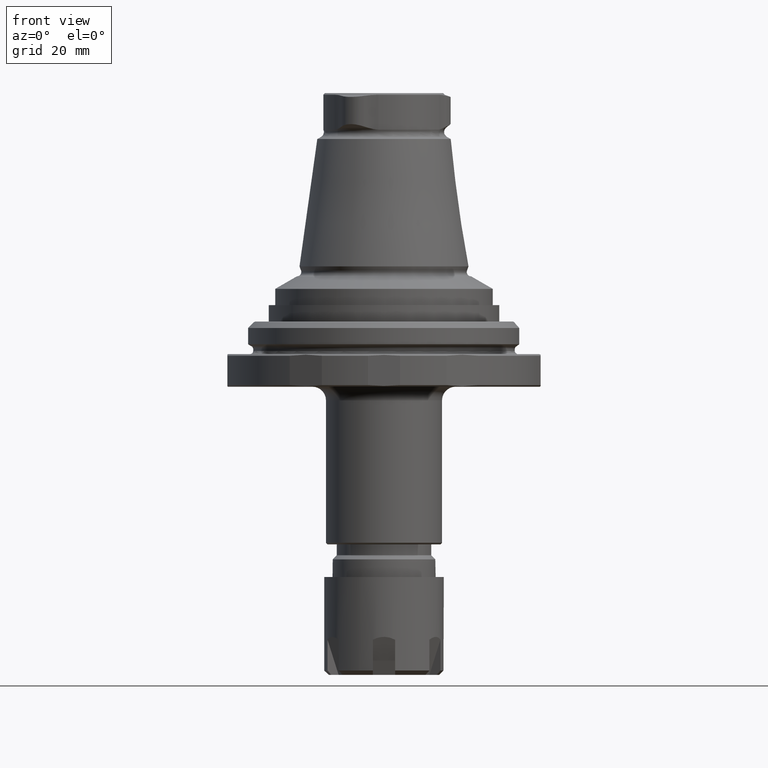
[diagram: clean part render]
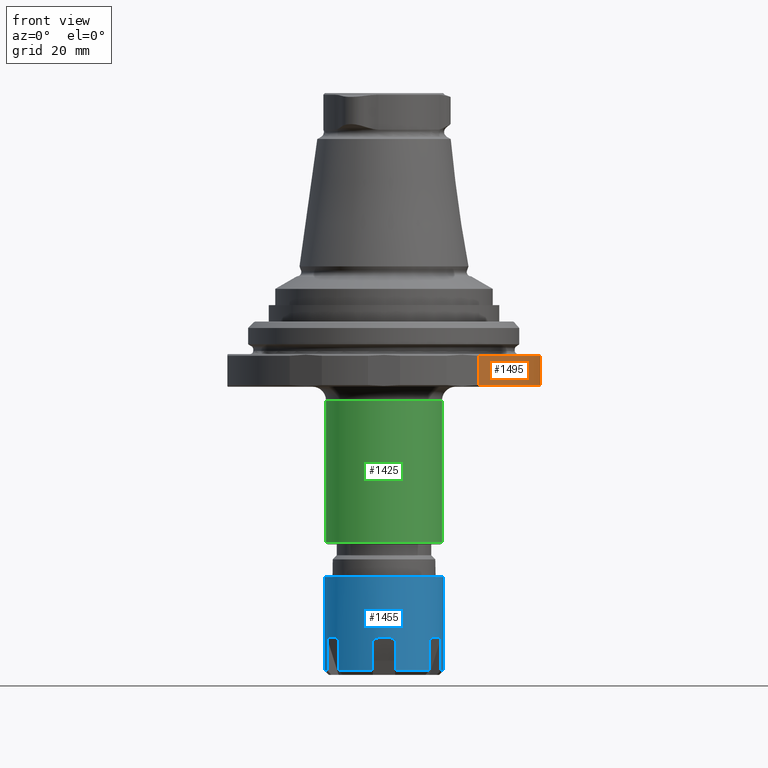
[diagram: same view with three faces highlighted in distinct colors, each labeled with its STEP entity id]
A machine part, front view with three faces highlighted in distinct colors.
Their STEP definitions:

[orange] entity #1495 — the highlighted cylindrical surface (partial cylindrical patch) has radius 29 mm, axis along (0, 0, -1).
#140=LINE('',#2698,#210);
#141=LINE('',#2699,#211);
#210=VECTOR('',#2063,1000.);
#211=VECTOR('',#2064,1000.);
#246=CYLINDRICAL_SURFACE('',#1675,29.);
#619=ORIENTED_EDGE('',*,*,#857,.F.);
#620=ORIENTED_EDGE('',*,*,#871,.T.);
#621=ORIENTED_EDGE('',*,*,#844,.T.);
#622=ORIENTED_EDGE('',*,*,#872,.T.);
#844=EDGE_CURVE('',#1006,#1005,#1090,.T.);
#857=EDGE_CURVE('',#1016,#1017,#1096,.T.);
#871=EDGE_CURVE('',#1016,#1006,#140,.F.);
#872=EDGE_CURVE('',#1005,#1017,#141,.T.);
#1005=VERTEX_POINT('',#2613);
#1006=VERTEX_POINT('',#2615);
#1016=VERTEX_POINT('',#2654);
#1017=VERTEX_POINT('',#2656);
#1090=CIRCLE('',#1657,29.);
#1096=CIRCLE('',#1665,29.);
#1211=EDGE_LOOP('',(#619,#620,#621,#622));
#1347=FACE_BOUND('',#1211,.T.);
#1495=ADVANCED_FACE('',(#1347),#246,.T.);
#1657=AXIS2_PLACEMENT_3D('',#2614,#2019,#2020);
#1665=AXIS2_PLACEMENT_3D('',#2655,#2037,#2038);
#1675=AXIS2_PLACEMENT_3D('',#2697,#2061,#2062);
#2019=DIRECTION('',(1.22464605849178E-16,1.04225259501902E-17,-1.));
#2020=DIRECTION('',(-1.,-1.84889274661175E-32,-1.22464605849178E-16));
#2037=DIRECTION('',(1.22464605849178E-16,1.04225259501902E-17,-1.));
#2038=DIRECTION('',(-1.,-1.84889274661175E-32,-1.22464605849178E-16));
#2061=DIRECTION('',(1.22464605849178E-16,1.04225259501902E-17,-1.));
#2062=DIRECTION('',(-1.,-1.84889274661175E-32,-1.22464605849178E-16));
#2063=DIRECTION('',(1.22464605849178E-16,1.04225259501902E-17,-1.));
#2064=DIRECTION('',(1.22464605849178E-16,1.04225259501902E-17,-1.));
#2613=CARTESIAN_POINT('',(17.3444863728671,-23.2415316289918,-1.30000000000001));
#2614=CARTESIAN_POINT('',(5.18882886749478E-15,9.69294913367689E-17,-1.30000000000001));
#2615=CARTESIAN_POINT('',(28.8,-3.39999999999998,-1.30000000000001));
#2654=CARTESIAN_POINT('',(28.8,-3.39999999999998,-6.70000000000001));
#2655=CARTESIAN_POINT('',(5.85013773908035E-15,1.53211131467796E-16,-6.70000000000001));
#2656=CARTESIAN_POINT('',(17.3444863728671,-23.2415316289918,-6.70000000000001));
#2697=CARTESIAN_POINT('',(5.15208948574003E-15,9.38027335517118E-17,-1.00000000000001));
#2698=CARTESIAN_POINT('',(28.8,-3.39999999999998,-1.00000000000001));
#2699=CARTESIAN_POINT('',(17.3444863728671,-23.2415316289918,-1.00000000000001));

[blue] entity #1455 — the highlighted cylindrical surface (bore or boss wall) has radius 11 mm, axis along (0, 0, -1).
#20=ELLIPSE('',#1560,32.161848401794,11.);
#21=ELLIPSE('',#1566,32.161848401794,11.);
#22=ELLIPSE('',#1572,32.161848401794,11.);
#23=ELLIPSE('',#1578,32.161848401794,11.);
#24=ELLIPSE('',#1584,32.161848401794,11.);
#25=ELLIPSE('',#1590,32.161848401794,11.);
#96=LINE('',#2224,#166);
#99=LINE('',#2237,#169);
#100=LINE('',#2251,#170);
#103=LINE('',#2259,#173);
#104=LINE('',#2273,#174);
#107=LINE('',#2281,#177);
#108=LINE('',#2295,#178);
#111=LINE('',#2303,#181);
#112=LINE('',#2317,#182);
#115=LINE('',#2325,#185);
#116=LINE('',#2339,#186);
#119=LINE('',#2347,#189);
#166=VECTOR('',#1785,1000.);
#169=VECTOR('',#1794,1000.);
#170=VECTOR('',#1801,1000.);
#173=VECTOR('',#1810,1000.);
#174=VECTOR('',#1817,1000.);
#177=VECTOR('',#1826,1000.);
#178=VECTOR('',#1833,1000.);
#181=VECTOR('',#1842,1000.);
#182=VECTOR('',#1849,1000.);
#185=VECTOR('',#1858,1000.);
#186=VECTOR('',#1865,1000.);
#189=VECTOR('',#1874,1000.);
#227=CYLINDRICAL_SURFACE('',#1594,11.);
#417=ORIENTED_EDGE('',*,*,#770,.T.);
#418=ORIENTED_EDGE('',*,*,#769,.F.);
#419=ORIENTED_EDGE('',*,*,#767,.T.);
#420=ORIENTED_EDGE('',*,*,#765,.T.);
#421=ORIENTED_EDGE('',*,*,#763,.F.);
#422=ORIENTED_EDGE('',*,*,#761,.F.);
#423=ORIENTED_EDGE('',*,*,#759,.T.);
#424=ORIENTED_EDGE('',*,*,#757,.T.);
#425=ORIENTED_EDGE('',*,*,#755,.F.);
#426=ORIENTED_EDGE('',*,*,#753,.F.);
#427=ORIENTED_EDGE('',*,*,#751,.T.);
#428=ORIENTED_EDGE('',*,*,#749,.T.);
#429=ORIENTED_EDGE('',*,*,#747,.F.);
#430=ORIENTED_EDGE('',*,*,#745,.F.);
#431=ORIENTED_EDGE('',*,*,#743,.T.);
#432=ORIENTED_EDGE('',*,*,#741,.T.);
#433=ORIENTED_EDGE('',*,*,#739,.F.);
#434=ORIENTED_EDGE('',*,*,#737,.F.);
#435=ORIENTED_EDGE('',*,*,#735,.T.);
#436=ORIENTED_EDGE('',*,*,#733,.T.);
#437=ORIENTED_EDGE('',*,*,#731,.F.);
#438=ORIENTED_EDGE('',*,*,#729,.F.);
#439=ORIENTED_EDGE('',*,*,#727,.T.);
#440=ORIENTED_EDGE('',*,*,#725,.T.);
#441=ORIENTED_EDGE('',*,*,#722,.F.);
#722=EDGE_CURVE('',#926,#927,#96,.F.);
#725=EDGE_CURVE('',#928,#927,#20,.F.);
#727=EDGE_CURVE('',#929,#928,#99,.F.);
#729=EDGE_CURVE('',#929,#930,#1054,.T.);
#731=EDGE_CURVE('',#930,#931,#100,.F.);
#733=EDGE_CURVE('',#932,#931,#21,.F.);
#735=EDGE_CURVE('',#933,#932,#103,.F.);
#737=EDGE_CURVE('',#933,#934,#1055,.T.);
#739=EDGE_CURVE('',#934,#935,#104,.F.);
#741=EDGE_CURVE('',#936,#935,#22,.F.);
#743=EDGE_CURVE('',#937,#936,#107,.F.);
#745=EDGE_CURVE('',#937,#938,#1056,.T.);
#747=EDGE_CURVE('',#938,#939,#108,.F.);
#749=EDGE_CURVE('',#940,#939,#23,.F.);
#751=EDGE_CURVE('',#941,#940,#111,.F.);
#753=EDGE_CURVE('',#941,#942,#1057,.T.);
#755=EDGE_CURVE('',#942,#943,#112,.F.);
#757=EDGE_CURVE('',#944,#943,#24,.F.);
#759=EDGE_CURVE('',#945,#944,#115,.F.);
#761=EDGE_CURVE('',#945,#946,#1058,.T.);
#763=EDGE_CURVE('',#946,#947,#116,.F.);
#765=EDGE_CURVE('',#948,#947,#25,.F.);
#767=EDGE_CURVE('',#949,#948,#119,.F.);
#769=EDGE_CURVE('',#949,#926,#1059,.T.);
#770=EDGE_CURVE('',#950,#950,#1060,.T.);
#926=VERTEX_POINT('',#2225);
#927=VERTEX_POINT('',#2226);
#928=VERTEX_POINT('',#2234);
#929=VERTEX_POINT('',#2238);
#930=VERTEX_POINT('',#2245);
#931=VERTEX_POINT('',#2252);
#932=VERTEX_POINT('',#2256);
#933=VERTEX_POINT('',#2260);
#934=VERTEX_POINT('',#2267);
#935=VERTEX_POINT('',#2274);
#936=VERTEX_POINT('',#2278);
#937=VERTEX_POINT('',#2282);
#938=VERTEX_POINT('',#2289);
#939=VERTEX_POINT('',#2296);
#940=VERTEX_POINT('',#2300);
#941=VERTEX_POINT('',#2304);
#942=VERTEX_POINT('',#2311);
#943=VERTEX_POINT('',#2318);
#944=VERTEX_POINT('',#2322);
#945=VERTEX_POINT('',#2326);
#946=VERTEX_POINT('',#2333);
#947=VERTEX_POINT('',#2340);
#948=VERTEX_POINT('',#2344);
#949=VERTEX_POINT('',#2348);
#950=VERTEX_POINT('',#2357);
#1054=CIRCLE('',#1563,11.);
#1055=CIRCLE('',#1569,11.);
#1056=CIRCLE('',#1575,11.);
#1057=CIRCLE('',#1581,11.);
#1058=CIRCLE('',#1587,11.);
#1059=CIRCLE('',#1593,11.);
#1060=CIRCLE('',#1595,11.);
#1156=EDGE_LOOP('',(#417));
#1157=EDGE_LOOP('',(#418,#419,#420,#421,#422,#423,#424,#425,#426,#427,#428,
#429,#430,#431,#432,#433,#434,#435,#436,#437,#438,#439,#440,#441));
#1292=FACE_BOUND('',#1156,.T.);
#1293=FACE_BOUND('',#1157,.T.);
#1455=ADVANCED_FACE('',(#1292,#1293),#227,.T.);
#1560=AXIS2_PLACEMENT_3D('',#2233,#1789,#1790);
#1563=AXIS2_PLACEMENT_3D('',#2244,#1797,#1798);
#1566=AXIS2_PLACEMENT_3D('',#2255,#1805,#1806);
#1569=AXIS2_PLACEMENT_3D('',#2266,#1813,#1814);
#1572=AXIS2_PLACEMENT_3D('',#2277,#1821,#1822);
#1575=AXIS2_PLACEMENT_3D('',#2288,#1829,#1830);
#1578=AXIS2_PLACEMENT_3D('',#2299,#1837,#1838);
#1581=AXIS2_PLACEMENT_3D('',#2310,#1845,#1846);
#1584=AXIS2_PLACEMENT_3D('',#2321,#1853,#1854);
#1587=AXIS2_PLACEMENT_3D('',#2332,#1861,#1862);
#1590=AXIS2_PLACEMENT_3D('',#2343,#1869,#1870);
#1593=AXIS2_PLACEMENT_3D('',#2354,#1877,#1878);
#1594=AXIS2_PLACEMENT_3D('',#2355,#1879,#1880);
#1595=AXIS2_PLACEMENT_3D('',#2356,#1881,#1882);
#1785=DIRECTION('',(1.18855327063835E-16,7.61584351035E-18,-1.));
#1789=DIRECTION('',(0.813797681349374,0.469846310392953,-0.342020143325668));
#1790=DIRECTION('',(-0.296198132726024,-0.171010071662834,-0.939692620785909));
#1794=DIRECTION('',(1.18855327063835E-16,7.61584351035E-18,-1.));
#1797=DIRECTION('',(1.18855327063835E-16,7.61584351035E-18,-1.));
#1798=DIRECTION('',(-1.,6.12303176911188E-17,-1.18855327063835E-16));
#1801=DIRECTION('',(1.18855327063835E-16,7.61584351035E-18,-1.));
#1805=DIRECTION('',(0.813797681349373,-0.469846310392955,-0.342020143325668));
#1806=DIRECTION('',(-0.296198132726023,0.171010071662835,-0.939692620785909));
#1810=DIRECTION('',(1.18855327063835E-16,7.61584351035E-18,-1.));
#1813=DIRECTION('',(1.18855327063835E-16,7.61584351035E-18,-1.));
#1814=DIRECTION('',(-1.,6.12303176911188E-17,-1.18855327063835E-16));
#1817=DIRECTION('',(1.18855327063835E-16,7.61584351035E-18,-1.));
#1821=DIRECTION('',(-1.31965917728114E-16,-0.939692620785908,-0.342020143325668));
#1822=DIRECTION('',(1.74514863192344E-16,0.342020143325669,-0.939692620785909));
#1826=DIRECTION('',(1.18855327063835E-16,7.61584351035E-18,-1.));
#1829=DIRECTION('',(1.18855327063835E-16,7.61584351035E-18,-1.));
#1830=DIRECTION('',(-1.,6.12303176911188E-17,-1.18855327063835E-16));
#1833=DIRECTION('',(1.18855327063835E-16,7.61584351035E-18,-1.));
#1837=DIRECTION('',(-0.813797681349374,-0.469846310392954,-0.342020143325669));
#1838=DIRECTION('',(0.296198132726024,0.171010071662834,-0.939692620785909));
#1842=DIRECTION('',(1.18855327063835E-16,7.61584351035E-18,-1.));
#1845=DIRECTION('',(1.18855327063835E-16,7.61584351035E-18,-1.));
#1846=DIRECTION('',(-1.,6.12303176911188E-17,-1.18855327063835E-16));
#1849=DIRECTION('',(1.18855327063835E-16,7.61584351035E-18,-1.));
#1853=DIRECTION('',(-0.813797681349373,0.469846310392954,-0.342020143325669));
#1854=DIRECTION('',(0.296198132726024,-0.171010071662834,-0.939692620785909));
#1858=DIRECTION('',(1.18855327063835E-16,7.61584351035E-18,-1.));
#1861=DIRECTION('',(1.18855327063835E-16,7.61584351035E-18,-1.));
#1862=DIRECTION('',(-1.,6.12303176911188E-17,-1.18855327063835E-16));
#1865=DIRECTION('',(1.18855327063835E-16,7.61584351035E-18,-1.));
#1869=DIRECTION('',(9.81885937001132E-17,0.939692620785908,-0.342020143325668));
#1870=DIRECTION('',(9.07454717503885E-17,-0.342020143325669,-0.939692620785909));
#1874=DIRECTION('',(1.18855327063835E-16,7.61584351035E-18,-1.));
#1877=DIRECTION('',(1.18855327063835E-16,7.61584351035E-18,-1.));
#1878=DIRECTION('',(-1.,6.12303176911188E-17,-1.18855327063835E-16));
#1879=DIRECTION('',(1.18855327063835E-16,7.61584351035E-18,-1.));
#1880=DIRECTION('',(-1.,6.12303176911188E-17,-1.18855327063835E-16));
#1881=DIRECTION('',(1.18855327063835E-16,7.61584351035E-18,-1.));
#1882=DIRECTION('',(-1.,6.12303176911188E-17,-1.18855327063835E-16));
#2224=CARTESIAN_POINT('',(8.3343869991576,7.1789966811716,-60.));
#2225=CARTESIAN_POINT('',(8.3343869991576,7.1789966811716,-59.2));
#2226=CARTESIAN_POINT('',(8.3343869991576,7.1789966811716,-53.5294685527279));
#2233=CARTESIAN_POINT('',(2.18559341788641E-14,2.64439234619228E-16,-83.2222516140009));
#2234=CARTESIAN_POINT('',(10.3843869991576,3.6282925256554,-53.5294685527279));
#2237=CARTESIAN_POINT('',(10.3843869991576,3.6282925256554,-60.));
#2238=CARTESIAN_POINT('',(10.3843869991576,3.6282925256554,-59.2));
#2244=CARTESIAN_POINT('',(1.90007616064723E-14,8.14895255607442E-17,-59.2));
#2245=CARTESIAN_POINT('',(10.3843869991576,-3.62829252565543,-59.2));
#2251=CARTESIAN_POINT('',(10.3843869991576,-3.62829252565543,-60.));
#2252=CARTESIAN_POINT('',(10.3843869991576,-3.62829252565543,-53.5294685527279));
#2255=CARTESIAN_POINT('',(2.18559341788641E-14,2.64439234619228E-16,-83.2222516140009));
#2256=CARTESIAN_POINT('',(8.33438699915759,-7.17899668117162,-53.5294685527279));
#2259=CARTESIAN_POINT('',(8.33438699915759,-7.17899668117162,-60.));
#2260=CARTESIAN_POINT('',(8.33438699915759,-7.17899668117162,-59.2));
#2266=CARTESIAN_POINT('',(1.90007616064723E-14,8.14895255607442E-17,-59.2));
#2267=CARTESIAN_POINT('',(2.05000000000002,-10.807289206827,-59.2));
#2273=CARTESIAN_POINT('',(2.05000000000002,-10.807289206827,-60.));
#2274=CARTESIAN_POINT('',(2.05000000000002,-10.807289206827,-53.5294685527279));
#2277=CARTESIAN_POINT('',(2.18559341788641E-14,2.64439234619228E-16,-83.2222516140009));
#2278=CARTESIAN_POINT('',(-2.04999999999998,-10.807289206827,-53.5294685527279));
#2281=CARTESIAN_POINT('',(-2.04999999999998,-10.807289206827,-60.));
#2282=CARTESIAN_POINT('',(-2.04999999999998,-10.807289206827,-59.2));
#2288=CARTESIAN_POINT('',(1.90007616064723E-14,8.14895255607442E-17,-59.2));
#2289=CARTESIAN_POINT('',(-8.33438699915756,-7.17899668117161,-59.2));
#2295=CARTESIAN_POINT('',(-8.33438699915756,-7.17899668117161,-60.));
#2296=CARTESIAN_POINT('',(-8.33438699915756,-7.17899668117161,-53.5294685527279));
#2299=CARTESIAN_POINT('',(2.18559341788641E-14,2.64439234619228E-16,-83.2222516140009));
#2300=CARTESIAN_POINT('',(-10.3843869991576,-3.62829252565541,-53.5294685527279));
#2303=CARTESIAN_POINT('',(-10.3843869991576,-3.62829252565541,-60.));
#2304=CARTESIAN_POINT('',(-10.3843869991576,-3.62829252565541,-59.2));
#2310=CARTESIAN_POINT('',(1.90007616064723E-14,8.14895255607442E-17,-59.2));
#2311=CARTESIAN_POINT('',(-10.3843869991576,3.62829252565542,-59.2));
#2317=CARTESIAN_POINT('',(-10.3843869991576,3.62829252565542,-60.));
#2318=CARTESIAN_POINT('',(-10.3843869991576,3.62829252565542,-53.5294685527279));
#2321=CARTESIAN_POINT('',(2.18559341788641E-14,2.64439234619228E-16,-83.2222516140009));
#2322=CARTESIAN_POINT('',(-8.33438699915756,7.17899668117161,-53.5294685527279));
#2325=CARTESIAN_POINT('',(-8.33438699915756,7.17899668117161,-60.));
#2326=CARTESIAN_POINT('',(-8.33438699915756,7.17899668117161,-59.2));
#2332=CARTESIAN_POINT('',(1.90007616064723E-14,8.14895255607442E-17,-59.2));
#2333=CARTESIAN_POINT('',(-2.04999999999998,10.807289206827,-59.2));
#2339=CARTESIAN_POINT('',(-2.04999999999998,10.807289206827,-60.));
#2340=CARTESIAN_POINT('',(-2.04999999999998,10.807289206827,-53.5294685527279));
#2343=CARTESIAN_POINT('',(2.18559341788641E-14,2.64439234619228E-16,-83.2222516140009));
#2344=CARTESIAN_POINT('',(2.05000000000002,10.807289206827,-53.5294685527279));
#2347=CARTESIAN_POINT('',(2.05000000000002,10.807289206827,-60.));
#2348=CARTESIAN_POINT('',(2.05000000000002,10.807289206827,-59.2));
#2354=CARTESIAN_POINT('',(1.90007616064723E-14,8.14895255607442E-17,-59.2));
#2355=CARTESIAN_POINT('',(1.90958458681234E-14,8.75822003690242E-17,-60.));
#2356=CARTESIAN_POINT('',(1.69564499809744E-14,-4.95029828172759E-17,-42.));
#2357=CARTESIAN_POINT('',(-11.,6.24030511785031E-16,-42.));

[green] entity #1425 — the highlighted cylindrical surface (bore or boss wall) has radius 10.75 mm, axis along (0, 0, -1).
#224=CYLINDRICAL_SURFACE('',#1541,10.75);
#286=ORIENTED_EDGE('',*,*,#692,.T.);
#287=ORIENTED_EDGE('',*,*,#693,.T.);
#692=EDGE_CURVE('',#896,#896,#1042,.F.);
#693=EDGE_CURVE('',#897,#897,#1043,.T.);
#896=VERTEX_POINT('',#2158);
#897=VERTEX_POINT('',#2161);
#1042=CIRCLE('',#1540,10.75);
#1043=CIRCLE('',#1542,10.75);
#1120=EDGE_LOOP('',(#286));
#1121=EDGE_LOOP('',(#287));
#1256=FACE_BOUND('',#1120,.T.);
#1257=FACE_BOUND('',#1121,.T.);
#1425=ADVANCED_FACE('',(#1256,#1257),#224,.T.);
#1540=AXIS2_PLACEMENT_3D('',#2157,#1729,#1730);
#1541=AXIS2_PLACEMENT_3D('',#2159,#1731,#1732);
#1542=AXIS2_PLACEMENT_3D('',#2160,#1733,#1734);
#1729=DIRECTION('',(1.22464605849178E-16,1.51929083932157E-64,-1.));
#1730=DIRECTION('',(6.16297582203915E-33,1.,7.54746404904039E-49));
#1731=DIRECTION('',(1.22464605849178E-16,1.51929083932157E-64,-1.));
#1732=DIRECTION('',(6.16297582203915E-33,1.,7.54746404904039E-49));
#1733=DIRECTION('',(1.22464605849178E-16,1.51929083932157E-64,-1.));
#1734=DIRECTION('',(6.16297582203915E-33,1.,7.54746404904039E-49));
#2157=CARTESIAN_POINT('',(4.37198642881565E-15,7.24763577429825E-63,-35.7));
#2158=CARTESIAN_POINT('',(4.37198642881565E-15,10.75,-35.7));
#2159=CARTESIAN_POINT('',(5.87780255360068E-15,9.11574503592941E-63,-47.9959292143521));
#2160=CARTESIAN_POINT('',(1.16341375556719E-15,3.26709377527574E-63,-9.5));
#2161=CARTESIAN_POINT('',(1.16341375556719E-15,10.75,-9.5));